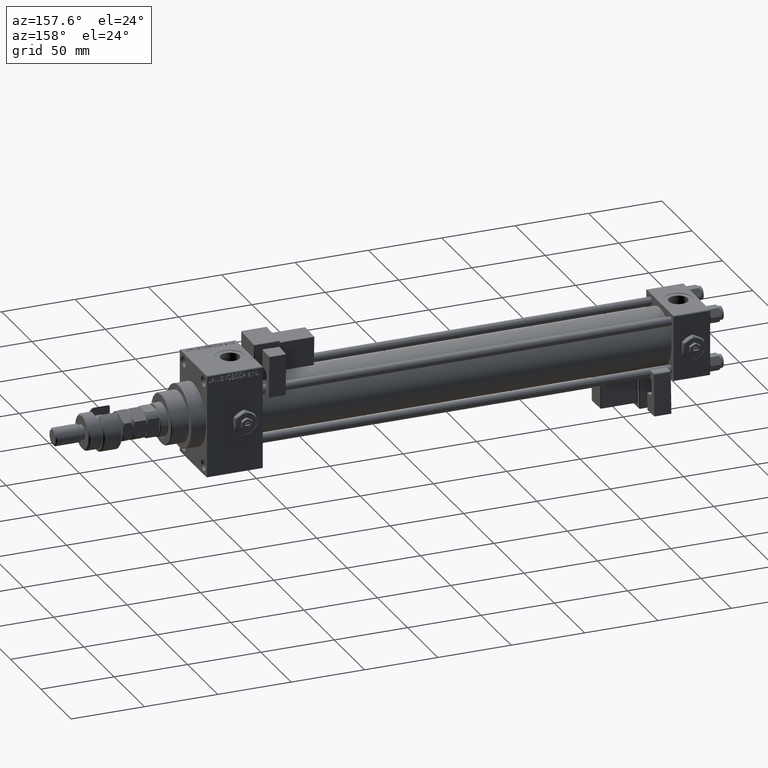
[diagram: clean part render]
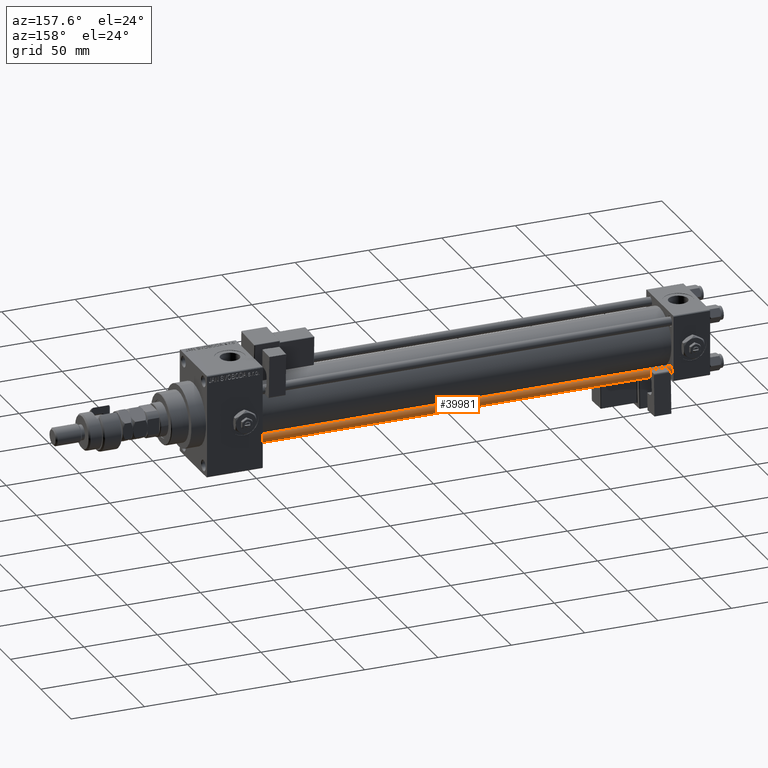
[diagram: same view with one face highlighted and labeled with its STEP entity id]
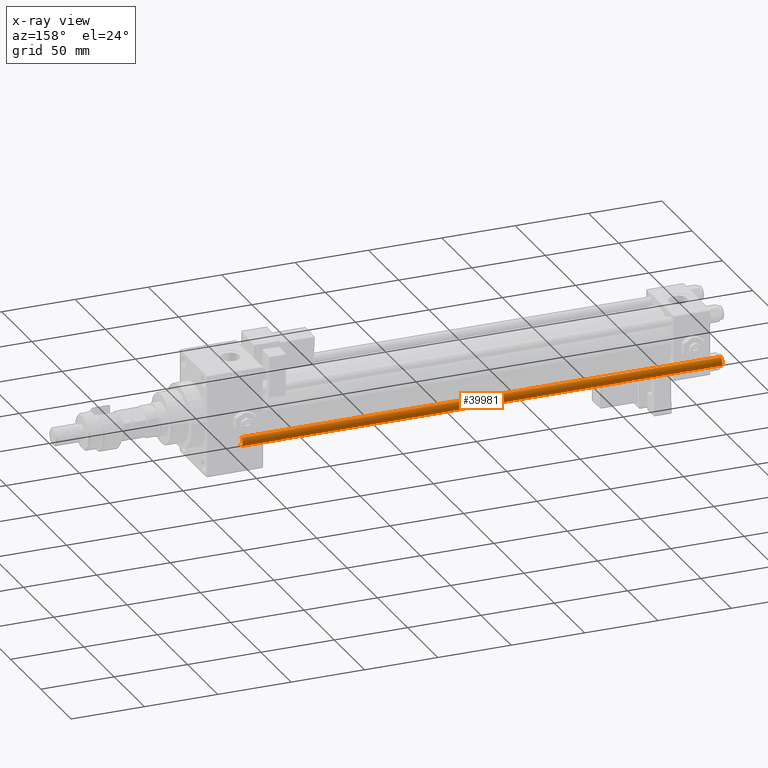
[diagram: x-ray of the same camera — body ghosted, the highlighted face saturated]
A machine part, auxiliary view. The second image highlights one B-rep face of the part: STEP entity #39981.
The next image is the same camera in x-ray: the body ghosted, the highlighted face saturated — about 0% of this face is hidden behind the body in this view.
In plain terms, the highlighted cylindrical surface (edge-blend (fillet) strip) has radius 3 mm, axis along (1, -0, 0).
Its self-contained STEP definition (entity closure, byte-faithful):
#3844 = DIRECTION ( 'NONE',  ( -0.000000000000000000, -0.000000000000000000, -1.000000000000000000 ) ) ;
#6001 = EDGE_CURVE ( 'NONE', #35824, #37277, #51528, .T. ) ;
#11504 = AXIS2_PLACEMENT_3D ( 'NONE', #12967, #41718, #37071 ) ;
#12967 = CARTESIAN_POINT ( 'NONE',  ( 0.000000000000000000, 0.000000000000000000, 328.0000000000000000 ) ) ;
#13201 = DIRECTION ( 'NONE',  ( -0.000000000000000000, -0.000000000000000000, -1.000000000000000000 ) ) ;
#14139 = EDGE_CURVE ( 'NONE', #41886, #35824, #46452, .T. ) ;
#15255 = CARTESIAN_POINT ( 'NONE',  ( -3.000000000000000444, 0.000000000000000000, 327.5000000000000000 ) ) ;
#16581 = VECTOR ( 'NONE', #3844, 1000.000000000000000 ) ;
#17282 = CARTESIAN_POINT ( 'NONE',  ( 0.000000000000000000, 0.000000000000000000, 327.5000000000000000 ) ) ;
#17546 = CARTESIAN_POINT ( 'NONE',  ( 3.000000000000000444, 3.673940397442060361E-16, 327.5000000000000000 ) ) ;
#18094 = DIRECTION ( 'NONE',  ( 1.000000000000000000, 0.000000000000000000, 0.000000000000000000 ) ) ;
#19741 = CARTESIAN_POINT ( 'NONE',  ( -3.000000000000000444, 0.000000000000000000, 328.0000000000000000 ) ) ;
#21510 = CIRCLE ( 'NONE', #45127, 3.000000000000000444 ) ;
#22175 = ORIENTED_EDGE ( 'NONE', *, *, #36834, .F. ) ;
#23632 = CARTESIAN_POINT ( 'NONE',  ( -3.000000000000000444, 0.000000000000000000, 0.5000000000000559552 ) ) ;
#24453 = CYLINDRICAL_SURFACE ( 'NONE', #11504, 3.000000000000000444 ) ;
#25797 = EDGE_CURVE ( 'NONE', #37277, #43176, #21510, .T. ) ;
#29883 = DIRECTION ( 'NONE',  ( 0.000000000000000000, 0.000000000000000000, -1.000000000000000000 ) ) ;
#30420 = CARTESIAN_POINT ( 'NONE',  ( 3.000000000000000444, 3.673940397442060361E-16, 328.0000000000000000 ) ) ;
#31556 = AXIS2_PLACEMENT_3D ( 'NONE', #17282, #29883, #18094 ) ;
#32675 = FACE_OUTER_BOUND ( 'NONE', #43060, .T. ) ;
#35824 = VERTEX_POINT ( 'NONE', #17546 ) ;
#36834 = EDGE_CURVE ( 'NONE', #41886, #43176, #52901, .T. ) ;
#37071 = DIRECTION ( 'NONE',  ( -1.000000000000000000, 0.000000000000000000, 0.000000000000000000 ) ) ;
#37277 = VERTEX_POINT ( 'NONE', #43332 ) ;
#39981 = ADVANCED_FACE ( 'NONE', ( #32675 ), #24453, .T. ) ;
#40724 = ORIENTED_EDGE ( 'NONE', *, *, #14139, .T. ) ;
#41718 = DIRECTION ( 'NONE',  ( -0.000000000000000000, -0.000000000000000000, -1.000000000000000000 ) ) ;
#41854 = CARTESIAN_POINT ( 'NONE',  ( 0.000000000000000000, 0.000000000000000000, 0.5000000000000559552 ) ) ;
#41886 = VERTEX_POINT ( 'NONE', #15255 ) ;
#43060 = EDGE_LOOP ( 'NONE', ( #40724, #50714, #48635, #22175 ) ) ;
#43176 = VERTEX_POINT ( 'NONE', #23632 ) ;
#43332 = CARTESIAN_POINT ( 'NONE',  ( 3.000000000000000444, 3.673940397442060361E-16, 0.5000000000000559552 ) ) ;
#43566 = VECTOR ( 'NONE', #13201, 1000.000000000000000 ) ;
#45127 = AXIS2_PLACEMENT_3D ( 'NONE', #41854, #47780, #51633 ) ;
#46452 = CIRCLE ( 'NONE', #31556, 3.000000000000000444 ) ;
#47780 = DIRECTION ( 'NONE',  ( -0.000000000000000000, -0.000000000000000000, 1.000000000000000000 ) ) ;
#48635 = ORIENTED_EDGE ( 'NONE', *, *, #25797, .T. ) ;
#50714 = ORIENTED_EDGE ( 'NONE', *, *, #6001, .T. ) ;
#51528 = LINE ( 'NONE', #30420, #43566 ) ;
#51633 = DIRECTION ( 'NONE',  ( 1.000000000000000000, 0.000000000000000000, 0.000000000000000000 ) ) ;
#52901 = LINE ( 'NONE', #19741, #16581 ) ;